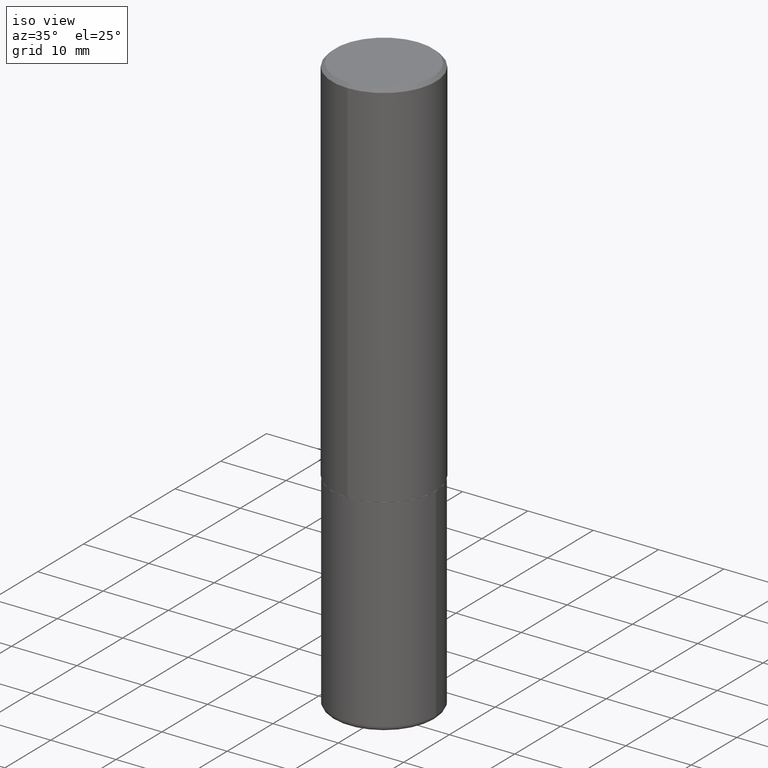
[diagram: clean part render]
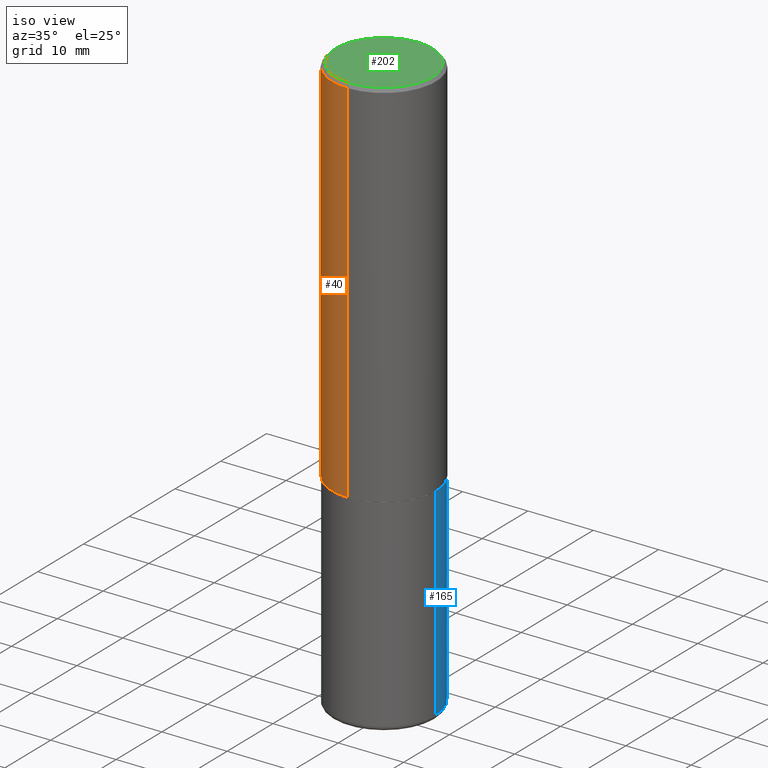
[diagram: same view with three faces highlighted in distinct colors, each labeled with its STEP entity id]
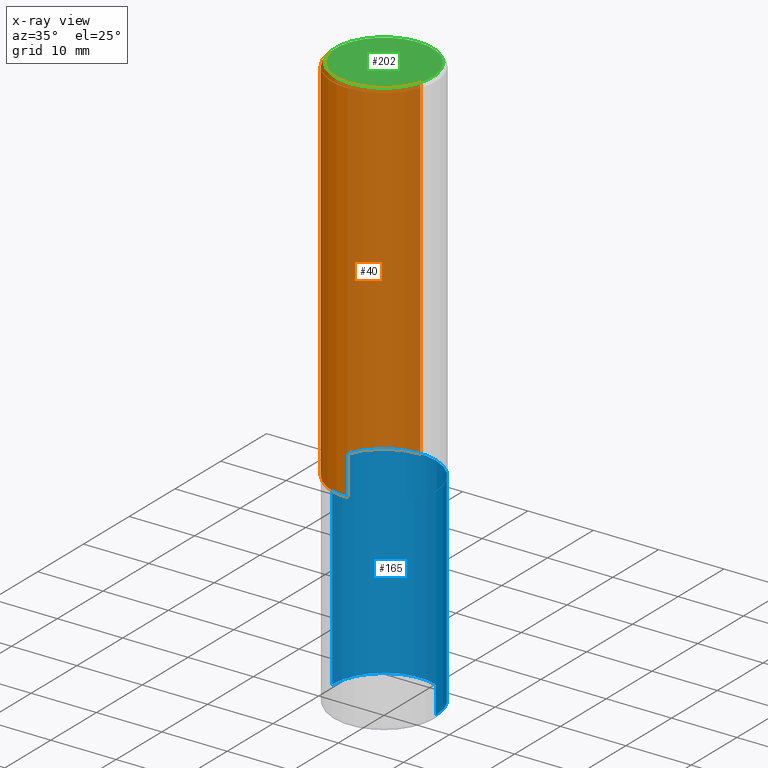
[diagram: x-ray of the same camera — body ghosted, the three highlighted faces saturated]
A machine part, iso view with three faces highlighted in distinct colors.
The next image is the same camera in x-ray (body ghosted, the three faces saturated) — at least one of them is partly hidden behind the body in this view.
Their STEP definitions:

[orange] entity #40 — the highlighted cylindrical surface (partial cylindrical patch) has radius 7.9375 mm, axis along (-0, 0, 1).
#1 = CARTESIAN_POINT ( 'NONE',  ( -2.182175836776905099E-15, -0.3125000000000081601, -2.248999999999998334 ) ) ;
#9 = VERTEX_POINT ( 'NONE', #1 ) ;
#19 = DIRECTION ( 'NONE',  ( -2.446358674475855534E-29, 3.490206996802678235E-15, 1.000000000000000000 ) ) ;
#24 = ORIENTED_EDGE ( 'NONE', *, *, #36, .F. ) ;
#36 = EDGE_CURVE ( 'NONE', #380, #253, #209, .T. ) ;
#38 = DIRECTION ( 'NONE',  ( -6.982962677686265133E-15, -1.000000000000000000, 3.496765431890256920E-15 ) ) ;
#40 = ADVANCED_FACE ( 'NONE', ( #225 ), #370, .T. ) ;
#41 = VECTOR ( 'NONE', #19, 39.37007874015748143 ) ;
#54 = DIRECTION ( 'NONE',  ( -2.446358674475855534E-29, 3.490206996802678235E-15, 1.000000000000000000 ) ) ;
#60 = LINE ( 'NONE', #256, #88 ) ;
#66 = DIRECTION ( 'NONE',  ( -2.446358674475855534E-29, 3.490206996802678235E-15, 1.000000000000000000 ) ) ;
#88 = VECTOR ( 'NONE', #54, 39.37007874015748143 ) ;
#98 = DIRECTION ( 'NONE',  ( -6.982962677686265133E-15, -1.000000000000000000, 3.490206996802678235E-15 ) ) ;
#159 = VERTEX_POINT ( 'NONE', #302 ) ;
#185 = LINE ( 'NONE', #320, #41 ) ;
#194 = DIRECTION ( 'NONE',  ( -2.446358674475855534E-29, 3.490206996802678235E-15, 1.000000000000000000 ) ) ;
#199 = CARTESIAN_POINT ( 'NONE',  ( 4.892717348951727429E-31, -6.980413993605380283E-17, -0.02000000000000006981 ) ) ;
#208 = DIRECTION ( 'NONE',  ( -6.982962677686265922E-15, -1.000000000000000000, 3.496765431890253764E-15 ) ) ;
#209 = CIRCLE ( 'NONE', #327, 0.3125000000000000000 ) ;
#211 = EDGE_CURVE ( 'NONE', #159, #9, #371, .T. ) ;
#212 = CARTESIAN_POINT ( 'NONE',  ( 5.501860658896197188E-29, -7.849475535809221324E-15, -2.248999999999999222 ) ) ;
#225 = FACE_OUTER_BOUND ( 'NONE', #336, .T. ) ;
#253 = VERTEX_POINT ( 'NONE', #346 ) ;
#254 = AXIS2_PLACEMENT_3D ( 'NONE', #212, #308, #208 ) ;
#256 = CARTESIAN_POINT ( 'NONE',  ( 2.220446049250313475E-15, 0.3125000000000001665, -1.090689686500837491E-15 ) ) ;
#264 = ORIENTED_EDGE ( 'NONE', *, *, #399, .F. ) ;
#271 = CARTESIAN_POINT ( 'NONE',  ( 0.000000000000000000, 0.000000000000000000, 0.000000000000000000 ) ) ;
#272 = ORIENTED_EDGE ( 'NONE', *, *, #324, .T. ) ;
#302 = CARTESIAN_POINT ( 'NONE',  ( 2.220446049250341874E-15, 0.3124999999999924505, -2.249000000000000554 ) ) ;
#308 = DIRECTION ( 'NONE',  ( -2.446358674475855534E-29, 3.490206996802678235E-15, 1.000000000000000000 ) ) ;
#320 = CARTESIAN_POINT ( 'NONE',  ( -2.182175836776959136E-15, -0.3125000000000001665, 1.090689686500837491E-15 ) ) ;
#324 = EDGE_CURVE ( 'NONE', #9, #253, #185, .T. ) ;
#327 = AXIS2_PLACEMENT_3D ( 'NONE', #199, #194, #38 ) ;
#336 = EDGE_LOOP ( 'NONE', ( #264, #408, #272, #24 ) ) ;
#346 = CARTESIAN_POINT ( 'NONE',  ( -2.143905624303602824E-15, -0.3125000000000000555, -0.01999999999999897693 ) ) ;
#370 = CYLINDRICAL_SURFACE ( 'NONE', #376, 0.3125000000000001665 ) ;
#371 = CIRCLE ( 'NONE', #254, 0.3125000000000002776 ) ;
#376 = AXIS2_PLACEMENT_3D ( 'NONE', #271, #66, #98 ) ;
#380 = VERTEX_POINT ( 'NONE', #385 ) ;
#385 = CARTESIAN_POINT ( 'NONE',  ( 2.182175836776958741E-15, 0.3124999999999999445, -0.02000000000000116268 ) ) ;
#399 = EDGE_CURVE ( 'NONE', #159, #380, #60, .T. ) ;
#408 = ORIENTED_EDGE ( 'NONE', *, *, #211, .T. ) ;

[blue] entity #165 — the highlighted cylindrical surface (partial cylindrical patch) has radius 7.9375 mm, axis along (-0, 0, 1).
#35 = CARTESIAN_POINT ( 'NONE',  ( -0.3125000000000000555, -9.894994196535401314E-15, -3.469999999999999751 ) ) ;
#42 = LINE ( 'NONE', #100, #55 ) ;
#45 = VERTEX_POINT ( 'NONE', #396 ) ;
#52 = VERTEX_POINT ( 'NONE', #35 ) ;
#55 = VECTOR ( 'NONE', #368, 39.37007874015748143 ) ;
#90 = ORIENTED_EDGE ( 'NONE', *, *, #106, .F. ) ;
#93 = ORIENTED_EDGE ( 'NONE', *, *, #277, .T. ) ;
#100 = CARTESIAN_POINT ( 'NONE',  ( 0.3125000000000000000, -2.182175836776958347E-15, 1.523805242436230075E-29 ) ) ;
#106 = EDGE_CURVE ( 'NONE', #323, #118, #42, .T. ) ;
#112 = CIRCLE ( 'NONE', #179, 0.3125000000000000000 ) ;
#118 = VERTEX_POINT ( 'NONE', #340 ) ;
#138 = DIRECTION ( 'NONE',  ( -2.445468806185136597E-29, 3.491481338843145583E-15, 1.000000000000000000 ) ) ;
#140 = FACE_OUTER_BOUND ( 'NONE', #409, .T. ) ;
#143 = AXIS2_PLACEMENT_3D ( 'NONE', #383, #415, #322 ) ;
#152 = DIRECTION ( 'NONE',  ( 1.000000000000000000, -6.982962677686266711E-15, 4.876176775795936353E-29 ) ) ;
#154 = CARTESIAN_POINT ( 'NONE',  ( -0.3125000000000000000, 2.220446049250313081E-15, -1.537167215704658232E-29 ) ) ;
#158 = DIRECTION ( 'NONE',  ( -2.445468806185136877E-29, 3.491481338843145188E-15, 1.000000000000000000 ) ) ;
#165 = ADVANCED_FACE ( 'NONE', ( #140 ), #342, .T. ) ;
#174 = EDGE_CURVE ( 'NONE', #118, #45, #112, .T. ) ;
#179 = AXIS2_PLACEMENT_3D ( 'NONE', #374, #312, #279 ) ;
#191 = CARTESIAN_POINT ( 'NONE',  ( 0.3125000000000000555, -1.429761608256267432E-14, -3.469999999999999751 ) ) ;
#248 = LINE ( 'NONE', #154, #401 ) ;
#277 = EDGE_CURVE ( 'NONE', #323, #52, #328, .T. ) ;
#279 = DIRECTION ( 'NONE',  ( 1.000000000000000000, -6.982962677686265133E-15, 0.000000000000000000 ) ) ;
#282 = ORIENTED_EDGE ( 'NONE', *, *, #174, .F. ) ;
#305 = CARTESIAN_POINT ( 'NONE',  ( 0.000000000000000000, 0.000000000000000000, 0.000000000000000000 ) ) ;
#312 = DIRECTION ( 'NONE',  ( -2.445468806185136597E-29, 3.491481338843145583E-15, 1.000000000000000000 ) ) ;
#322 = DIRECTION ( 'NONE',  ( 1.000000000000000000, -6.982962677686264344E-15, 0.000000000000000000 ) ) ;
#323 = VERTEX_POINT ( 'NONE', #191 ) ;
#328 = CIRCLE ( 'NONE', #143, 0.3124999999999999445 ) ;
#330 = EDGE_CURVE ( 'NONE', #52, #45, #248, .T. ) ;
#333 = ORIENTED_EDGE ( 'NONE', *, *, #330, .T. ) ;
#340 = CARTESIAN_POINT ( 'NONE',  ( 0.3125000000000000000, -1.003800884917403364E-14, -2.249999999999999556 ) ) ;
#342 = CYLINDRICAL_SURFACE ( 'NONE', #413, 0.3125000000000000000 ) ;
#368 = DIRECTION ( 'NONE',  ( -2.445468806185136877E-29, 3.491481338843145188E-15, 1.000000000000000000 ) ) ;
#374 = CARTESIAN_POINT ( 'NONE',  ( 5.502304813916556222E-29, -7.855833012397075293E-15, -2.249999999999999556 ) ) ;
#383 = CARTESIAN_POINT ( 'NONE',  ( 8.485776757462424574E-29, -1.211544024578571439E-14, -3.469999999999999751 ) ) ;
#396 = CARTESIAN_POINT ( 'NONE',  ( -0.3125000000000000000, -7.765190579841083341E-15, -2.249999999999999556 ) ) ;
#401 = VECTOR ( 'NONE', #158, 39.37007874015748143 ) ;
#409 = EDGE_LOOP ( 'NONE', ( #93, #333, #282, #90 ) ) ;
#413 = AXIS2_PLACEMENT_3D ( 'NONE', #305, #138, #152 ) ;
#415 = DIRECTION ( 'NONE',  ( -2.445468806185136597E-29, 3.491481338843145583E-15, 1.000000000000000000 ) ) ;

[green] entity #202 — the highlighted planar face has unit normal (0, -0, -1).
#13 = AXIS2_PLACEMENT_3D ( 'NONE', #245, #206, #111 ) ;
#18 = EDGE_CURVE ( 'NONE', #192, #321, #404, .T. ) ;
#86 = CARTESIAN_POINT ( 'NONE',  ( 5.543544336137775157E-45, -7.908945417915609657E-31, -2.266039070221584626E-16 ) ) ;
#109 = CIRCLE ( 'NONE', #306, 0.2925000000000002043 ) ;
#111 = DIRECTION ( 'NONE',  ( 6.982962677686265922E-15, 1.000000000000000000, -3.490206996802678235E-15 ) ) ;
#150 = FACE_OUTER_BOUND ( 'NONE', #352, .T. ) ;
#162 = ORIENTED_EDGE ( 'NONE', *, *, #18, .T. ) ;
#164 = ORIENTED_EDGE ( 'NONE', *, *, #353, .T. ) ;
#192 = VERTEX_POINT ( 'NONE', #238 ) ;
#202 = ADVANCED_FACE ( 'NONE', ( #150 ), #348, .F. ) ;
#206 = DIRECTION ( 'NONE',  ( 2.446358674475855254E-29, -3.490206996802678235E-15, -1.000000000000000000 ) ) ;
#238 = CARTESIAN_POINT ( 'NONE',  ( -2.075300644325888676E-15, -0.2925000000000002043, 7.942816395426258046E-16 ) ) ;
#245 = CARTESIAN_POINT ( 'NONE',  ( 2.042516583223234512E-15, 0.2925000000000002043, -1.134187500075863227E-15 ) ) ;
#295 = DIRECTION ( 'NONE',  ( -2.446358674475855534E-29, 3.490206996802678235E-15, 1.000000000000000000 ) ) ;
#306 = AXIS2_PLACEMENT_3D ( 'NONE', #86, #403, #410 ) ;
#321 = VERTEX_POINT ( 'NONE', #381 ) ;
#338 = CARTESIAN_POINT ( 'NONE',  ( 5.543544336137775157E-45, -7.908945417915609657E-31, -2.266039070221584626E-16 ) ) ;
#348 = PLANE ( 'NONE',  #13 ) ;
#352 = EDGE_LOOP ( 'NONE', ( #164, #162 ) ) ;
#353 = EDGE_CURVE ( 'NONE', #321, #192, #109, .T. ) ;
#363 = DIRECTION ( 'NONE',  ( -6.982962677686266711E-15, -1.000000000000000000, 3.490206996802677840E-15 ) ) ;
#381 = CARTESIAN_POINT ( 'NONE',  ( 2.112346210000096627E-15, 0.2925000000000002043, -1.247489453586942631E-15 ) ) ;
#394 = AXIS2_PLACEMENT_3D ( 'NONE', #338, #295, #363 ) ;
#403 = DIRECTION ( 'NONE',  ( -2.446358674475855534E-29, 3.490206996802678235E-15, 1.000000000000000000 ) ) ;
#404 = CIRCLE ( 'NONE', #394, 0.2925000000000002043 ) ;
#410 = DIRECTION ( 'NONE',  ( -6.982962677686266711E-15, -1.000000000000000000, 3.490206996802677840E-15 ) ) ;